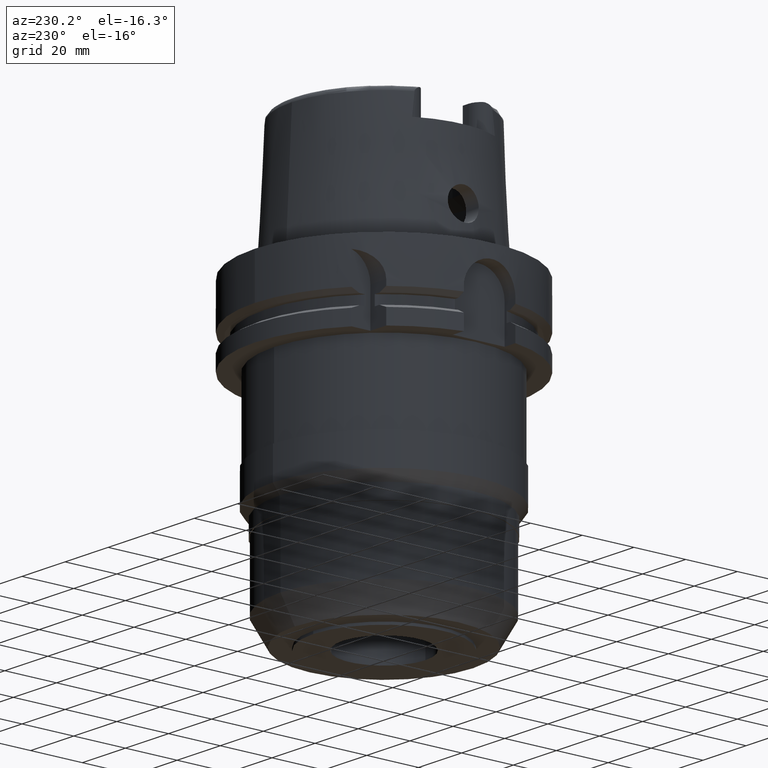
[diagram: clean part render]
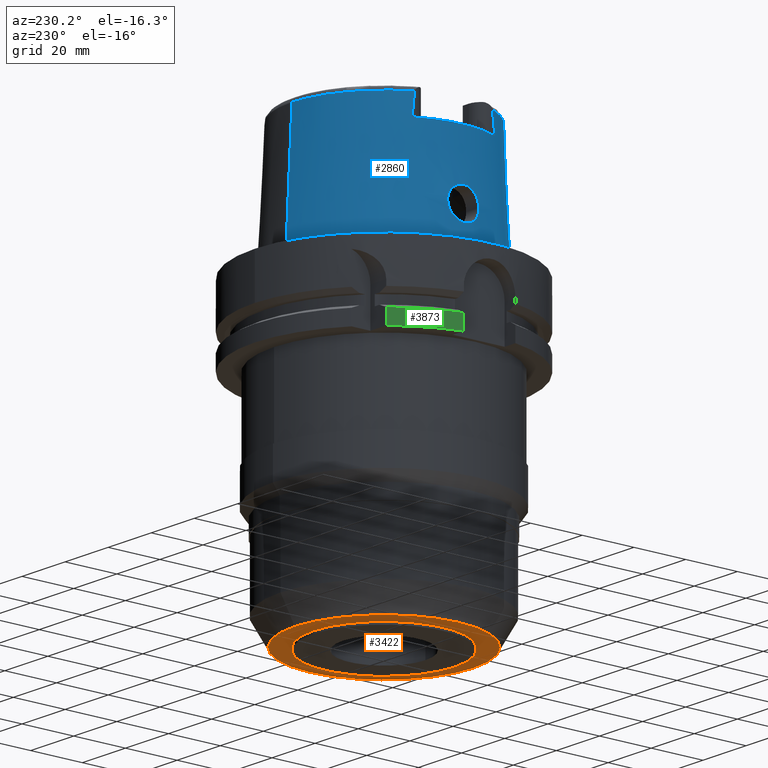
[diagram: same view with three faces highlighted in distinct colors, each labeled with its STEP entity id]
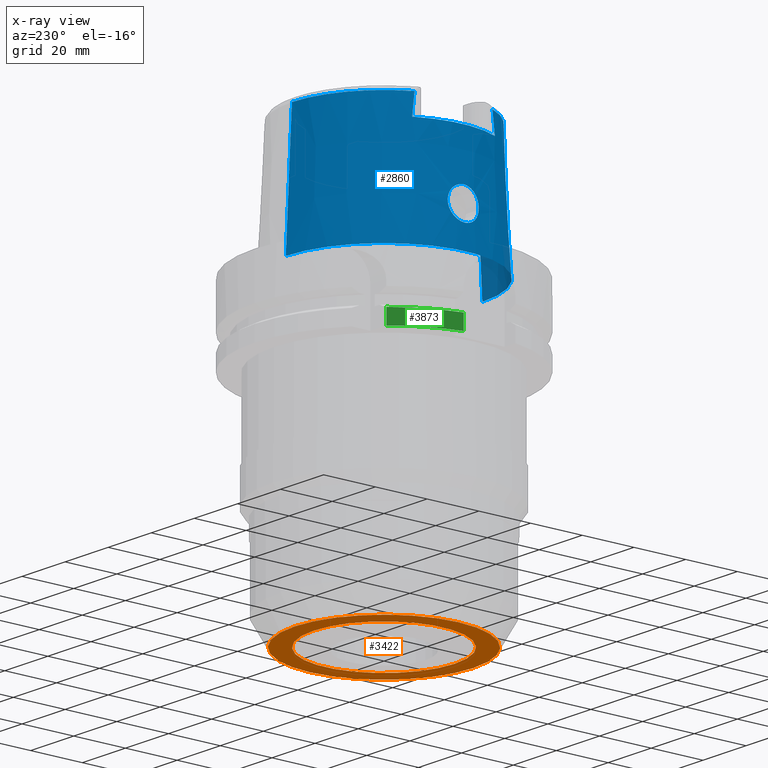
[diagram: x-ray of the same camera — body ghosted, the three highlighted faces saturated]
A machine part, auxiliary view with three faces highlighted in distinct colors.
The next image is the same camera in x-ray (body ghosted, the three faces saturated) — at least one of them is partly hidden behind the body in this view.
Their STEP definitions:

[orange] entity #3422 — the highlighted planar face has unit normal (0, 0, 1).
#1063=CARTESIAN_POINT('',(0.E0,0.E0,-1.14E2));
#1064=DIRECTION('',(0.E0,0.E0,1.E0));
#1065=DIRECTION('',(0.E0,-1.E0,0.E0));
#1066=AXIS2_PLACEMENT_3D('',#1063,#1064,#1065);
#1071=CARTESIAN_POINT('',(0.E0,0.E0,-1.14E2));
#1072=DIRECTION('',(0.E0,0.E0,1.E0));
#1073=DIRECTION('',(0.E0,1.E0,0.E0));
#1074=AXIS2_PLACEMENT_3D('',#1071,#1072,#1073);
#1079=CARTESIAN_POINT('',(0.E0,0.E0,-1.14E2));
#1080=DIRECTION('',(0.E0,0.E0,-1.E0));
#1081=DIRECTION('',(0.E0,-1.E0,0.E0));
#1082=AXIS2_PLACEMENT_3D('',#1079,#1080,#1081);
#1087=CARTESIAN_POINT('',(0.E0,0.E0,-1.14E2));
#1088=DIRECTION('',(0.E0,0.E0,-1.E0));
#1089=DIRECTION('',(0.E0,1.E0,0.E0));
#1090=AXIS2_PLACEMENT_3D('',#1087,#1088,#1089);
#2468=CARTESIAN_POINT('',(0.E0,2.735E1,-1.14E2));
#2469=VERTEX_POINT('',#2468);
#2470=CARTESIAN_POINT('',(0.E0,-2.735E1,-1.14E2));
#2471=VERTEX_POINT('',#2470);
#2472=CARTESIAN_POINT('',(0.E0,-3.451517244270E1,-1.14E2));
#2473=CARTESIAN_POINT('',(0.E0,3.451517244270E1,-1.14E2));
#2474=VERTEX_POINT('',#2472);
#2475=VERTEX_POINT('',#2473);
#3407=CARTESIAN_POINT('',(0.E0,0.E0,-1.14E2));
#3408=DIRECTION('',(0.E0,0.E0,1.E0));
#3409=DIRECTION('',(0.E0,1.E0,0.E0));
#3410=AXIS2_PLACEMENT_3D('',#3407,#3408,#3409);
#3411=PLANE('',#3410);
#3413=ORIENTED_EDGE('',*,*,#3412,.T.);
#3415=ORIENTED_EDGE('',*,*,#3414,.T.);
#3416=EDGE_LOOP('',(#3413,#3415));
#3417=FACE_OUTER_BOUND('',#3416,.F.);
#3418=ORIENTED_EDGE('',*,*,#3400,.T.);
#3419=ORIENTED_EDGE('',*,*,#3389,.T.);
#3420=EDGE_LOOP('',(#3418,#3419));
#3421=FACE_BOUND('',#3420,.F.);
#1067=CIRCLE('',#1066,3.451517244270E1);
#1075=CIRCLE('',#1074,3.451517244270E1);
#1083=CIRCLE('',#1082,2.735E1);
#1091=CIRCLE('',#1090,2.735E1);
#3389=EDGE_CURVE('',#2469,#2471,#1091,.T.);
#3400=EDGE_CURVE('',#2471,#2469,#1083,.T.);
#3412=EDGE_CURVE('',#2474,#2475,#1067,.T.);
#3414=EDGE_CURVE('',#2475,#2474,#1075,.T.);
#3422=ADVANCED_FACE('',(#3417,#3421),#3411,.F.);

[blue] entity #2860 — the highlighted conical surface has half-angle 2.862 deg.
#130=CARTESIAN_POINT('',(0.E0,0.E0,4.E1));
#131=DIRECTION('',(0.E0,0.E0,-1.E0));
#132=DIRECTION('',(-8.958345712660E-1,-4.443876921391E-1,0.E0));
#133=AXIS2_PLACEMENT_3D('',#130,#131,#132);
#221=CARTESIAN_POINT('',(-3.224999491821E1,-1.506448486579E1,4.809973213150E1));
#281=CARTESIAN_POINT('',(0.E0,0.E0,4.809987853799E1));
#282=DIRECTION('',(0.E0,0.E0,-1.E0));
#283=DIRECTION('',(0.E0,-1.E0,0.E0));
#284=AXIS2_PLACEMENT_3D('',#281,#282,#283);
#289=CARTESIAN_POINT('',(-3.224999876012E1,-1.599794043148E1,4.E1));
#290=CARTESIAN_POINT('',(-3.224999876012E1,-1.589618560063E1,4.090434232027E1));
#291=CARTESIAN_POINT('',(-3.224999990104E1,-1.569149929077E1,4.271014760529E1));
#292=CARTESIAN_POINT('',(-3.225000220619E1,-1.538028255877E1,4.541006258420E1));
#293=CARTESIAN_POINT('',(-3.224999491821E1,-1.517027178482E1,4.720433995335E1));
#294=CARTESIAN_POINT('',(-3.224999491821E1,-1.506448486579E1,4.809973213150E1));
#299=DIRECTION('',(5.154182075151E-5,-4.993927430816E-2,-9.987522546783E-1));
#300=VECTOR('',#299,4.815996991514E1);
#301=CARTESIAN_POINT('',(-2.482252536761E-3,-3.559494263425E1,
4.809987853799E1));
#302=LINE('',#301,#300);
#306=CARTESIAN_POINT('',(-3.225000136841E1,1.506443227156E1,4.809991931069E1));
#307=CARTESIAN_POINT('',(-3.225000136841E1,1.517024629450E1,4.720430018502E1));
#308=CARTESIAN_POINT('',(-3.225000007421E1,1.538032523398E1,4.541024586144E1));
#309=CARTESIAN_POINT('',(-3.224999768767E1,1.569154926970E1,4.271027466276E1));
#310=CARTESIAN_POINT('',(-3.225000534596E1,1.589614940559E1,4.090439636549E1));
#311=CARTESIAN_POINT('',(-3.225000534596E1,1.599791057085E1,4.E1));
#316=CARTESIAN_POINT('',(-3.755000165825E1,1.571614468377E-13,9.E0));
#317=CARTESIAN_POINT('',(-3.755000165825E1,-4.774623975075E-1,9.E0));
#318=CARTESIAN_POINT('',(-3.752564800764E1,-1.433627287811E0,9.114938507012E0));
#319=CARTESIAN_POINT('',(-3.742297264558E1,-2.784866192673E0,9.620139434642E0));
#320=CARTESIAN_POINT('',(-3.727031779025E1,-3.991242336627E0,1.044166867919E1));
#321=CARTESIAN_POINT('',(-3.709542025835E1,-4.968461069485E0,1.153104402076E1));
#322=CARTESIAN_POINT('',(-3.692806874863E1,-5.660522622739E0,1.283710692579E1));
#323=CARTESIAN_POINT('',(-3.679906340333E1,-6.013316780116E0,1.425835591612E1));
#324=CARTESIAN_POINT('',(-3.672459349161E1,-6.015264084171E0,1.572098751678E1));
#325=CARTESIAN_POINT('',(-3.670908287946E1,-5.671200657459E0,1.713015882632E1));
#326=CARTESIAN_POINT('',(-3.674329468142E1,-4.999756644175E0,1.842020586211E1));
#327=CARTESIAN_POINT('',(-3.680816156377E1,-4.045599111723E0,1.951067279025E1));
#328=CARTESIAN_POINT('',(-3.688142982455E1,-2.829106137500E0,2.035984389311E1));
#329=CARTESIAN_POINT('',(-3.693658391215E1,-1.450103664966E0,2.088314775004E1));
#330=CARTESIAN_POINT('',(-3.694998175923E1,-4.821581494095E-1,2.1E1));
#331=CARTESIAN_POINT('',(-3.694998175923E1,0.E0,2.1E1));
#336=CARTESIAN_POINT('',(-3.694998175923E1,0.E0,2.1E1));
#337=CARTESIAN_POINT('',(-3.694998175923E1,4.807138263630E-1,2.1E1));
#338=CARTESIAN_POINT('',(-3.693665721458E1,1.445169226301E0,2.088374326699E1));
#339=CARTESIAN_POINT('',(-3.688201764323E1,2.816724172228E0,2.036559881568E1));
#340=CARTESIAN_POINT('',(-3.680919432633E1,4.030088785856E0,1.952391412111E1));
#341=CARTESIAN_POINT('',(-3.674415441175E1,4.986522808104E0,1.843969749758E1));
#342=CARTESIAN_POINT('',(-3.670914135174E1,5.665520685947E0,1.714692093070E1));
#343=CARTESIAN_POINT('',(-3.672421780845E1,6.013138884750E0,1.573533641665E1));
#344=CARTESIAN_POINT('',(-3.679737158957E1,6.015276700996E0,1.428523185019E1));
#345=CARTESIAN_POINT('',(-3.692387002084E1,5.674358486435E0,1.287670197893E1));
#346=CARTESIAN_POINT('',(-3.708935705411E1,4.997152299162E0,1.157288444606E1));
#347=CARTESIAN_POINT('',(-3.726507874520E1,4.026222389734E0,1.047121032233E1));
#348=CARTESIAN_POINT('',(-3.742071097574E1,2.810330514357E0,9.631338801116E0));
#349=CARTESIAN_POINT('',(-3.752559107277E1,1.439880997208E0,9.115161785261E0));
#350=CARTESIAN_POINT('',(-3.755000165825E1,4.785896100418E-1,9.E0));
#351=CARTESIAN_POINT('',(-3.755000165825E1,1.571614468377E-13,9.E0));
#366=DIRECTION('',(-5.154182075159E-5,4.993927430816E-2,-9.987522546783E-1));
#367=VECTOR('',#366,4.815996991514E1);
#368=CARTESIAN_POINT('',(2.482252536765E-3,3.559494263425E1,4.809987853799E1));
#369=LINE('',#368,#367);
#2078=CARTESIAN_POINT('',(0.E0,0.E0,1.023181539495E-12));
#2079=DIRECTION('',(0.E0,0.E0,1.E0));
#2080=DIRECTION('',(0.E0,1.E0,0.E0));
#2081=AXIS2_PLACEMENT_3D('',#2078,#2079,#2080);
#2269=CARTESIAN_POINT('',(-3.225000136841E1,1.506443227156E1,4.809991931069E1));
#2274=CARTESIAN_POINT('',(0.E0,0.E0,4.809987853799E1));
#2275=DIRECTION('',(0.E0,0.E0,-1.E0));
#2276=DIRECTION('',(-9.060276961631E-1,4.232183996300E-1,0.E0));
#2277=AXIS2_PLACEMENT_3D('',#2274,#2275,#2276);
#2362=CARTESIAN_POINT('',(-3.224999876012E1,-1.599794043148E1,4.E1));
#2363=VERTEX_POINT('',#2362);
#2364=CARTESIAN_POINT('',(-3.224999999999E1,1.599793480981E1,4.E1));
#2365=VERTEX_POINT('',#2364);
#2367=VERTEX_POINT('',#2269);
#2368=CARTESIAN_POINT('',(0.E0,3.559494289391E1,4.809987853799E1));
#2369=VERTEX_POINT('',#2368);
#2373=VERTEX_POINT('',#221);
#2376=CARTESIAN_POINT('',(1.065814103640E-14,-3.559494289391E1,
4.809987853799E1));
#2377=VERTEX_POINT('',#2376);
#2378=CARTESIAN_POINT('',(0.E0,-3.800001658252E1,6.110667527537E-13));
#2379=VERTEX_POINT('',#2378);
#2380=CARTESIAN_POINT('',(0.E0,3.800001658252E1,1.023181539495E-12));
#2381=VERTEX_POINT('',#2380);
#2382=VERTEX_POINT('',#316);
#2383=VERTEX_POINT('',#331);
#2834=CARTESIAN_POINT('',(0.E0,0.E0,2.404993926900E1));
#2835=DIRECTION('',(0.E0,0.E0,-1.E0));
#2836=DIRECTION('',(0.E0,-1.E0,0.E0));
#2837=AXIS2_PLACEMENT_3D('',#2834,#2835,#2836);
#2838=CONICAL_SURFACE('',#2837,3.679747973821E1,2.8625E0);
#2839=ORIENTED_EDGE('',*,*,#2743,.F.);
#2840=ORIENTED_EDGE('',*,*,#2826,.T.);
#2841=ORIENTED_EDGE('',*,*,#2816,.F.);
#2843=ORIENTED_EDGE('',*,*,#2842,.T.);
#2845=ORIENTED_EDGE('',*,*,#2844,.F.);
#2847=ORIENTED_EDGE('',*,*,#2846,.F.);
#2849=ORIENTED_EDGE('',*,*,#2848,.F.);
#2851=ORIENTED_EDGE('',*,*,#2850,.T.);
#2852=EDGE_LOOP('',(#2839,#2840,#2841,#2843,#2845,#2847,#2849,#2851));
#2853=FACE_OUTER_BOUND('',#2852,.F.);
#2855=ORIENTED_EDGE('',*,*,#2854,.T.);
#2857=ORIENTED_EDGE('',*,*,#2856,.T.);
#2858=EDGE_LOOP('',(#2855,#2857));
#2859=FACE_BOUND('',#2858,.F.);
#134=CIRCLE('',#133,3.599995025244E1);
#285=CIRCLE('',#284,3.559494289391E1);
#295=B_SPLINE_CURVE_WITH_KNOTS('',3,(#289,#290,#291,#292,#293,#294),
.UNSPECIFIED.,.F.,.F.,(4,1,1,4),(0.E0,3.333333333333E-1,6.666666666667E-1,1.E0),
.UNSPECIFIED.);
#312=B_SPLINE_CURVE_WITH_KNOTS('',3,(#306,#307,#308,#309,#310,#311),
.UNSPECIFIED.,.F.,.F.,(4,1,1,4),(0.E0,3.333333333333E-1,6.666666666667E-1,1.E0),
.UNSPECIFIED.);
#332=B_SPLINE_CURVE_WITH_KNOTS('',3,(#316,#317,#318,#319,#320,#321,#322,#323,
#324,#325,#326,#327,#328,#329,#330,#331),.UNSPECIFIED.,.F.,.F.,(4,1,1,1,1,1,1,1,
1,1,1,1,1,4),(0.E0,7.692307692308E-2,1.538461538462E-1,2.307692307692E-1,
3.076923076923E-1,3.846153846154E-1,4.615384615385E-1,5.384615384615E-1,
6.153846153846E-1,6.923076923077E-1,7.692307692308E-1,8.461538461538E-1,
9.230769230769E-1,1.E0),.UNSPECIFIED.);
#352=B_SPLINE_CURVE_WITH_KNOTS('',3,(#336,#337,#338,#339,#340,#341,#342,#343,
#344,#345,#346,#347,#348,#349,#350,#351),.UNSPECIFIED.,.F.,.F.,(4,1,1,1,1,1,1,1,
1,1,1,1,1,4),(0.E0,7.692307692308E-2,1.538461538462E-1,2.307692307692E-1,
3.076923076923E-1,3.846153846154E-1,4.615384615385E-1,5.384615384615E-1,
6.153846153846E-1,6.923076923077E-1,7.692307692308E-1,8.461538461538E-1,
9.230769230769E-1,1.E0),.UNSPECIFIED.);
#2082=CIRCLE('',#2081,3.800001658252E1);
#2278=CIRCLE('',#2277,3.559494289391E1);
#2743=EDGE_CURVE('',#2363,#2365,#134,.T.);
#2816=EDGE_CURVE('',#2377,#2373,#285,.T.);
#2826=EDGE_CURVE('',#2363,#2373,#295,.T.);
#2842=EDGE_CURVE('',#2377,#2379,#302,.T.);
#2844=EDGE_CURVE('',#2381,#2379,#2082,.T.);
#2846=EDGE_CURVE('',#2369,#2381,#369,.T.);
#2848=EDGE_CURVE('',#2367,#2369,#2278,.T.);
#2850=EDGE_CURVE('',#2367,#2365,#312,.T.);
#2854=EDGE_CURVE('',#2382,#2383,#332,.T.);
#2856=EDGE_CURVE('',#2383,#2382,#352,.T.);
#2860=ADVANCED_FACE('',(#2853,#2859),#2838,.T.);

[green] entity #3873 — the highlighted cylindrical surface (partial cylindrical patch) has radius 50 mm, axis along (0, 0, 1).
#1298=CARTESIAN_POINT('',(0.E0,0.E0,-2.9E1));
#1299=DIRECTION('',(0.E0,0.E0,1.E0));
#1300=DIRECTION('',(-7.765951326142E-1,6.3E-1,0.E0));
#1301=AXIS2_PLACEMENT_3D('',#1298,#1299,#1300);
#1551=DIRECTION('',(-1.164835666500E-7,-1.435883620959E-7,1.E0));
#1552=VECTOR('',#1551,5.752407739009E0);
#1553=CARTESIAN_POINT('',(-3.882975663071E1,3.15E1,-2.9E1));
#1554=LINE('',#1553,#1552);
#1558=DIRECTION('',(-8.399427413532E-14,0.E0,-1.E0));
#1559=VECTOR('',#1558,5.752404735809E0);
#1560=CARTESIAN_POINT('',(-4.898979485566E1,1.E1,-2.324759526419E1));
#1561=LINE('',#1560,#1559);
#2219=CARTESIAN_POINT('',(0.E0,0.E0,-2.324759526419E1));
#2220=DIRECTION('',(0.E0,0.E0,-1.E0));
#2221=DIRECTION('',(-9.797958971133E-1,2.E-1,0.E0));
#2222=AXIS2_PLACEMENT_3D('',#2219,#2220,#2221);
#2512=CARTESIAN_POINT('',(-3.882975663071E1,3.15E1,-2.9E1));
#2513=VERTEX_POINT('',#2512);
#2514=CARTESIAN_POINT('',(-4.898979485566E1,1.E1,-2.9E1));
#2515=VERTEX_POINT('',#2514);
#2558=CARTESIAN_POINT('',(-3.882975730077E1,3.149999917402E1,
-2.324759226099E1));
#2559=VERTEX_POINT('',#2558);
#2560=CARTESIAN_POINT('',(-4.898979485566E1,1.E1,-2.324759526419E1));
#2561=VERTEX_POINT('',#2560);
#3860=CARTESIAN_POINT('',(0.E0,0.E0,-1.2325E2));
#3861=DIRECTION('',(0.E0,0.E0,1.E0));
#3862=DIRECTION('',(0.E0,1.E0,0.E0));
#3863=AXIS2_PLACEMENT_3D('',#3860,#3861,#3862);
#3864=CYLINDRICAL_SURFACE('',#3863,5.E1);
#3866=ORIENTED_EDGE('',*,*,#3865,.T.);
#3868=ORIENTED_EDGE('',*,*,#3867,.F.);
#3869=ORIENTED_EDGE('',*,*,#3840,.T.);
#3870=ORIENTED_EDGE('',*,*,#3632,.F.);
#3871=EDGE_LOOP('',(#3866,#3868,#3869,#3870));
#3872=FACE_OUTER_BOUND('',#3871,.F.);
#1302=CIRCLE('',#1301,5.E1);
#2223=CIRCLE('',#2222,5.E1);
#3632=EDGE_CURVE('',#2513,#2515,#1302,.T.);
#3840=EDGE_CURVE('',#2561,#2515,#1561,.T.);
#3865=EDGE_CURVE('',#2513,#2559,#1554,.T.);
#3867=EDGE_CURVE('',#2561,#2559,#2223,.T.);
#3873=ADVANCED_FACE('',(#3872),#3864,.T.);